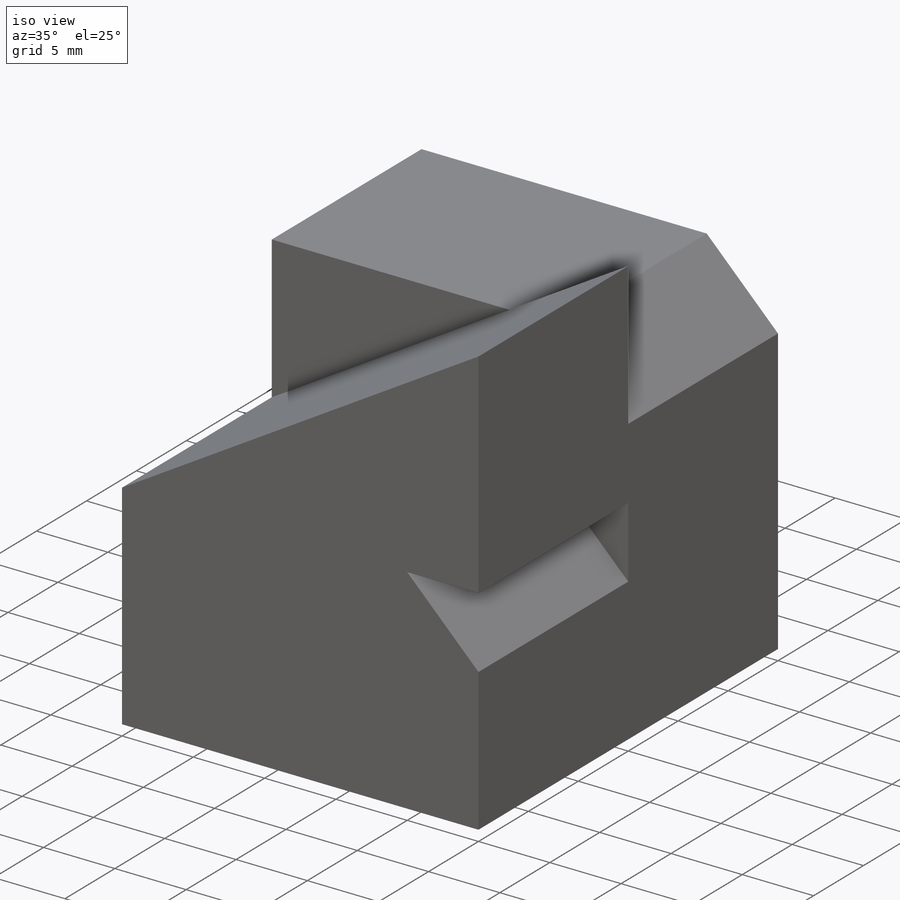
[diagram: iso view]
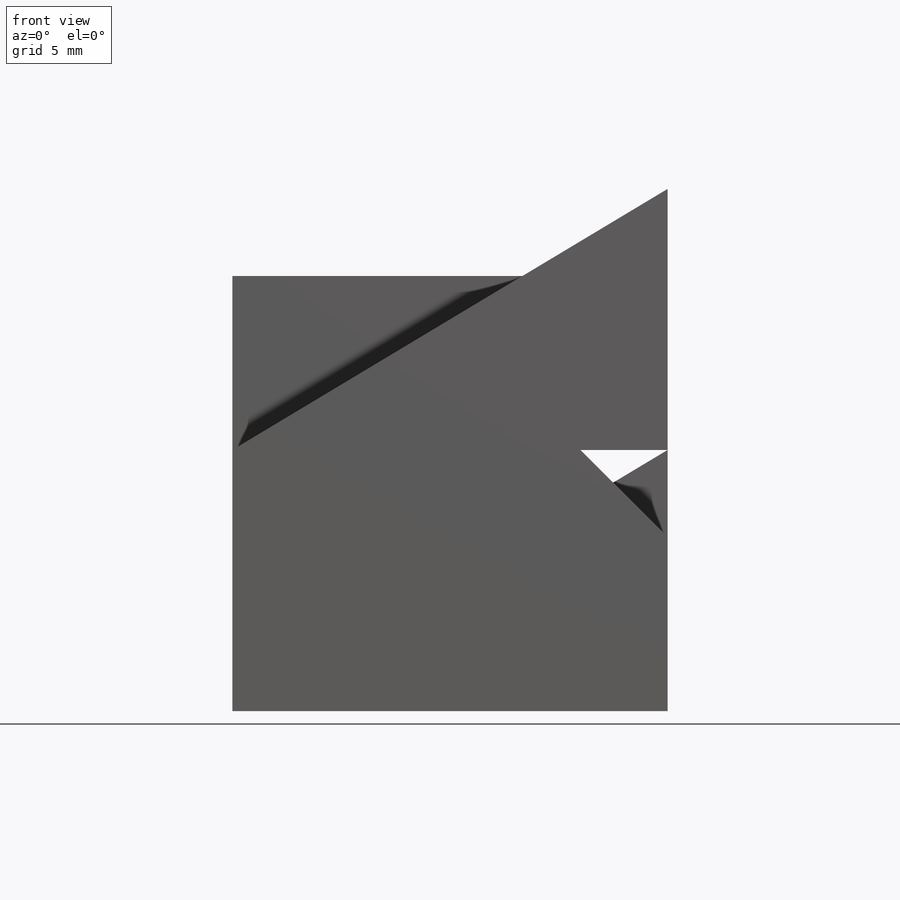
[diagram: front view]
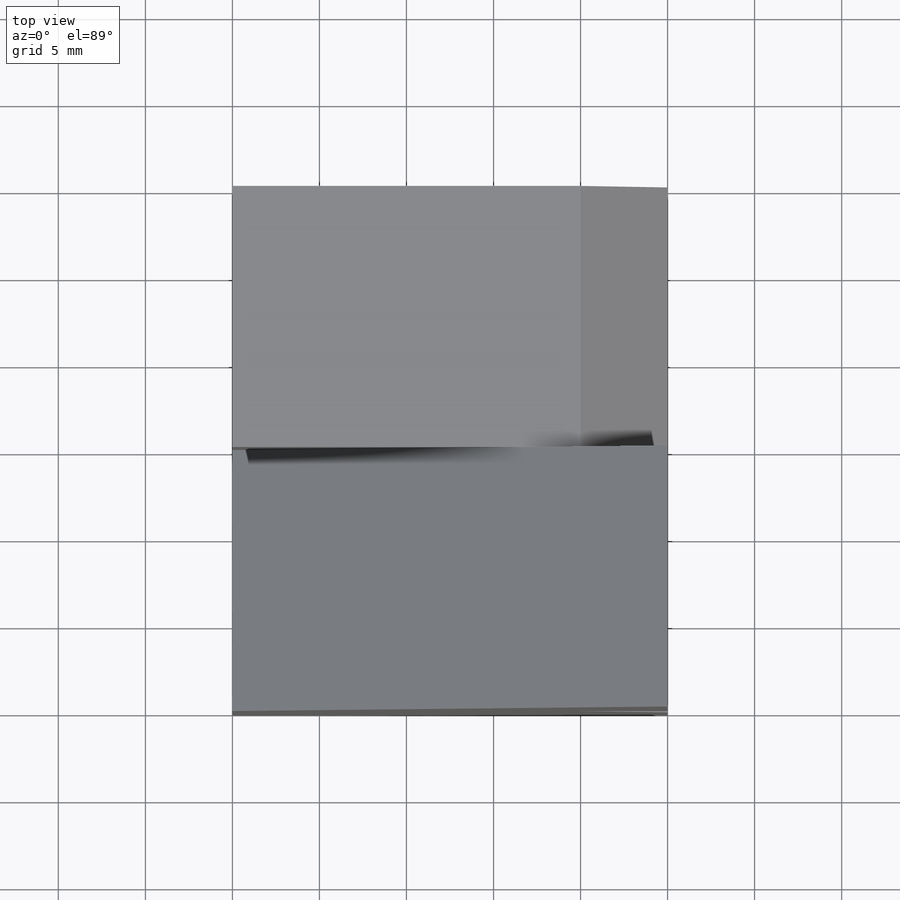
[diagram: top view]
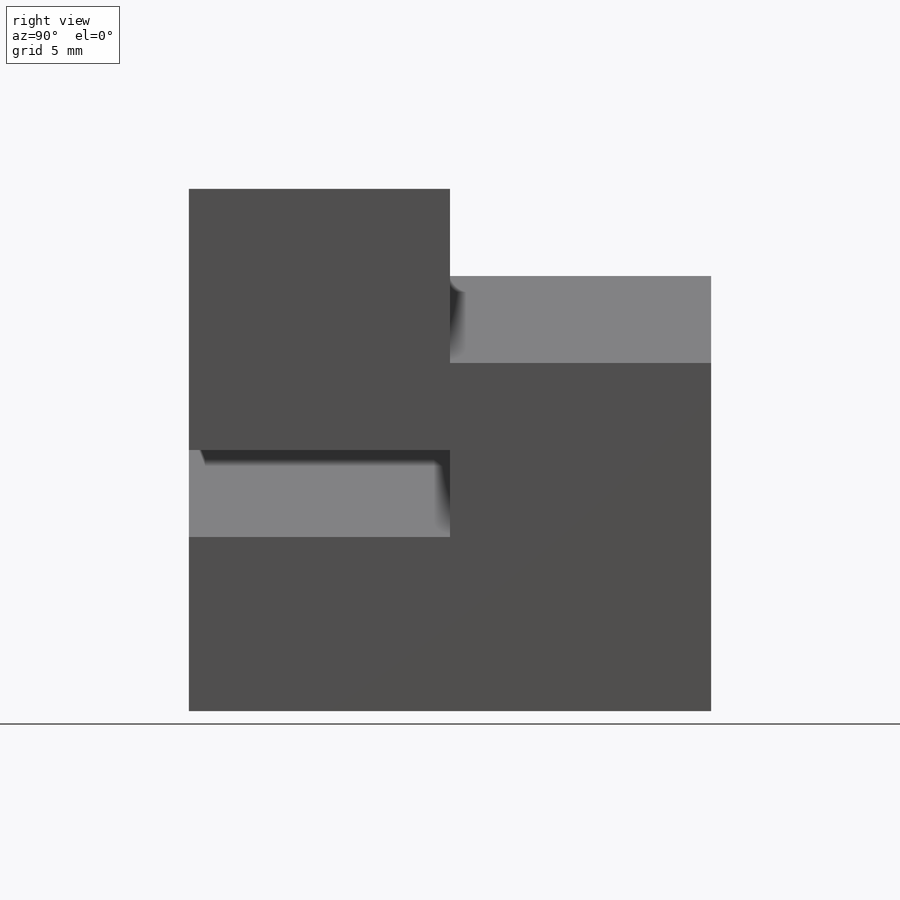
[diagram: right view]
SOLIDWORKS PART (.sldprt)
format: sldprt  version: not decoded by parser v0  size: 159,744 bytes
history: native  units: mm
features: sketch x4, extrude x4, material x1 (+13 scaffold rows collapsed)
feature tree (22):
  scaffold x13  (default folders/planes/origin — collapsed)
  material  "Material <not specified>"
  sketch  "Sketch1"  dims[D1=25.0mm D2=15.0mm]
  extrude  "Boss-Extrude1"  Depth=15mm
  sketch  "Sketch2"  dims[c1.D1=30.0mm c1.D2=10.0mm c1.D3=25.0mm c2.D3=~0.558934deg c3.D3=25.0mm c3.D1=20.0mm c4.D3=25.0mm c4.D4=15.0mm]
  extrude  "Boss-Extrude2"  Depth=15mm
  sketch  "Sketch3"  dims[D1=25.0mm 15=15.0mm]
  extrude  "Boss-Extrude4"  Depth=15mm
  sketch  "Sketch5"  dims[D1=10.0mm D2=20.0mm D3=5.0mm]
  extrude  "Boss-Extrude5"  Depth=15mm
decode coverage: 8 of 8 modeling features carry decoded parameters
note: ~ marks probable driven/reference dimensions
note: suppression state not decoded; provenance and decode notes live in map.json
